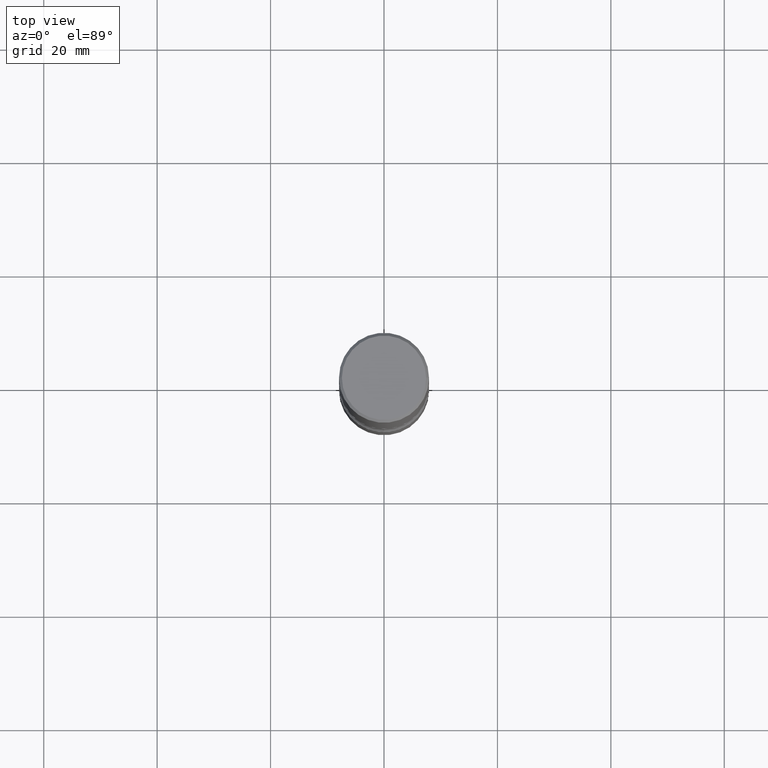
[diagram: clean part render]
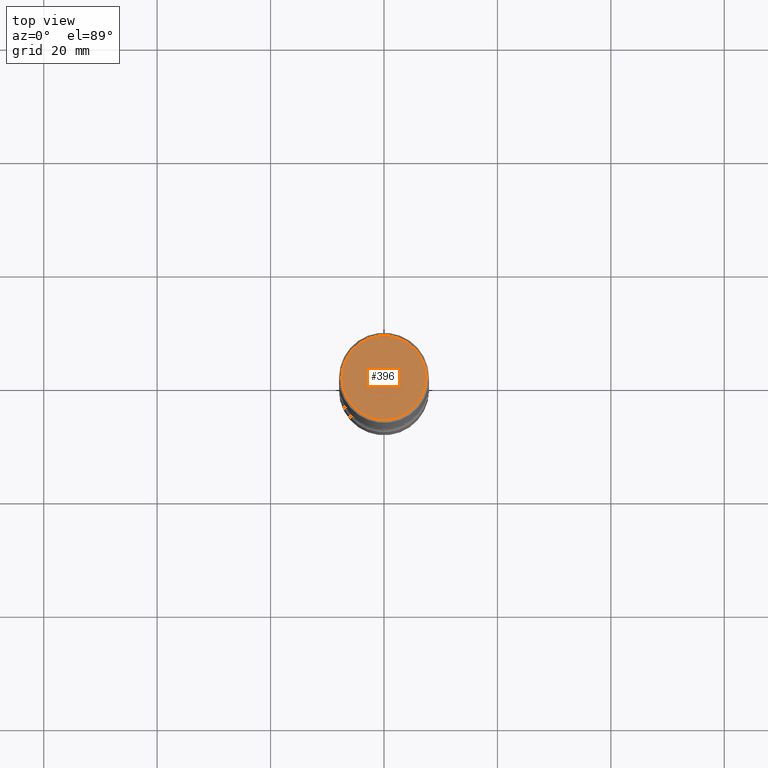
[diagram: same view with one face highlighted and labeled with its STEP entity id]
A machine part, top view. The second image highlights one B-rep face of the part: STEP entity #396.
In plain terms, the highlighted planar face has unit normal (0, -0, -1).
Its self-contained STEP definition (entity closure, byte-faithful):
#25 = PLANE ( 'NONE',  #333 ) ;
#48 = CARTESIAN_POINT ( 'NONE',  ( -0.2924999999999998157, 2.077431396611663005E-15, 4.268512490086005323E-18 ) ) ;
#82 = CARTESIAN_POINT ( 'NONE',  ( 0.2924999999999998157, -2.110215457714318748E-15, 4.268512490114932791E-18 ) ) ;
#104 = DIRECTION ( 'NONE',  ( 2.438088387897960049E-29, -3.491481338843145188E-15, -1.000000000000000000 ) ) ;
#153 = CARTESIAN_POINT ( 'NONE',  ( 2.042516583223231356E-15, 0.2924999999999998157, -1.019124035366569212E-15 ) ) ;
#161 = DIRECTION ( 'NONE',  ( -2.445468806185136597E-29, 3.491481338843145583E-15, 1.000000000000000000 ) ) ;
#191 = CARTESIAN_POINT ( 'NONE',  ( -1.043851414335219820E-46, 1.490343170380447200E-32, 4.268512490100411279E-18 ) ) ;
#197 = DIRECTION ( 'NONE',  ( 1.000000000000000000, -6.982962677686266711E-15, 4.876067333457692840E-29 ) ) ;
#214 = VERTEX_POINT ( 'NONE', #82 ) ;
#246 = FACE_OUTER_BOUND ( 'NONE', #534, .T. ) ;
#272 = EDGE_CURVE ( 'NONE', #474, #214, #319, .T. ) ;
#289 = DIRECTION ( 'NONE',  ( -1.000000000000000000, 6.982962677686265922E-15, -4.876176775795935793E-29 ) ) ;
#296 = EDGE_CURVE ( 'NONE', #214, #474, #307, .T. ) ;
#307 = CIRCLE ( 'NONE', #314, 0.2924999999999998157 ) ;
#314 = AXIS2_PLACEMENT_3D ( 'NONE', #420, #545, #197 ) ;
#319 = CIRCLE ( 'NONE', #543, 0.2924999999999998157 ) ;
#333 = AXIS2_PLACEMENT_3D ( 'NONE', #153, #104, #289 ) ;
#342 = DIRECTION ( 'NONE',  ( 1.000000000000000000, -6.982962677686266711E-15, 4.876067333457692840E-29 ) ) ;
#396 = ADVANCED_FACE ( 'NONE', ( #246 ), #25, .F. ) ;
#420 = CARTESIAN_POINT ( 'NONE',  ( -1.043851414335219820E-46, 1.490343170380447200E-32, 4.268512490100411279E-18 ) ) ;
#474 = VERTEX_POINT ( 'NONE', #48 ) ;
#477 = ORIENTED_EDGE ( 'NONE', *, *, #272, .T. ) ;
#497 = ORIENTED_EDGE ( 'NONE', *, *, #296, .T. ) ;
#534 = EDGE_LOOP ( 'NONE', ( #477, #497 ) ) ;
#543 = AXIS2_PLACEMENT_3D ( 'NONE', #191, #161, #342 ) ;
#545 = DIRECTION ( 'NONE',  ( -2.445468806185136597E-29, 3.491481338843145583E-15, 1.000000000000000000 ) ) ;